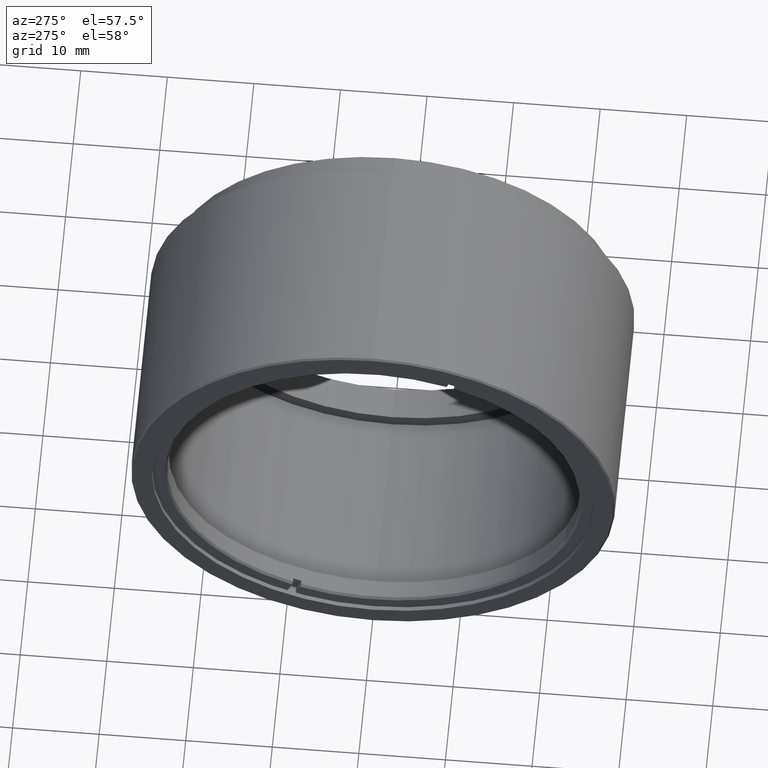
[diagram: clean part render]
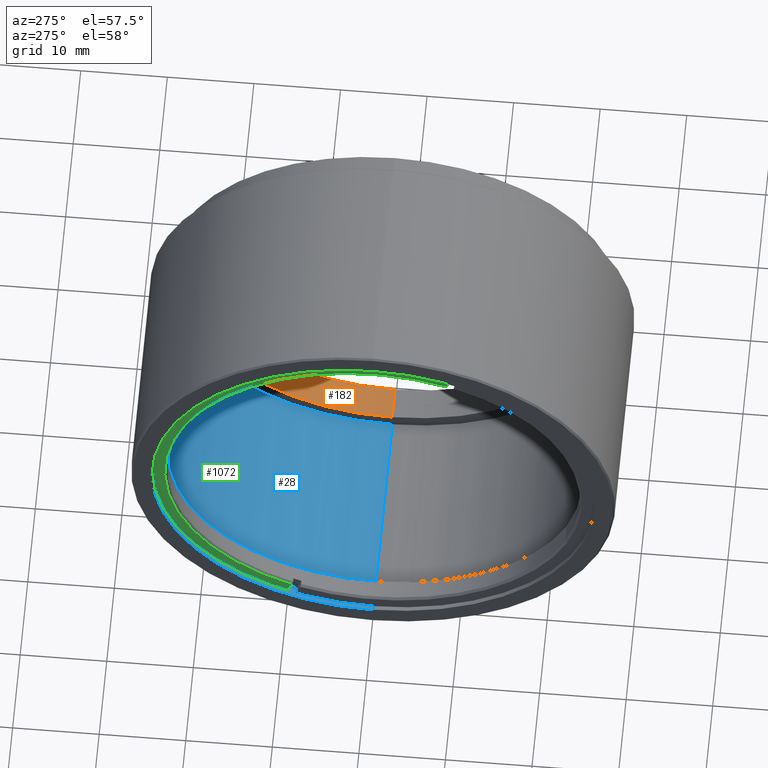
[diagram: same view with three faces highlighted in distinct colors, each labeled with its STEP entity id]
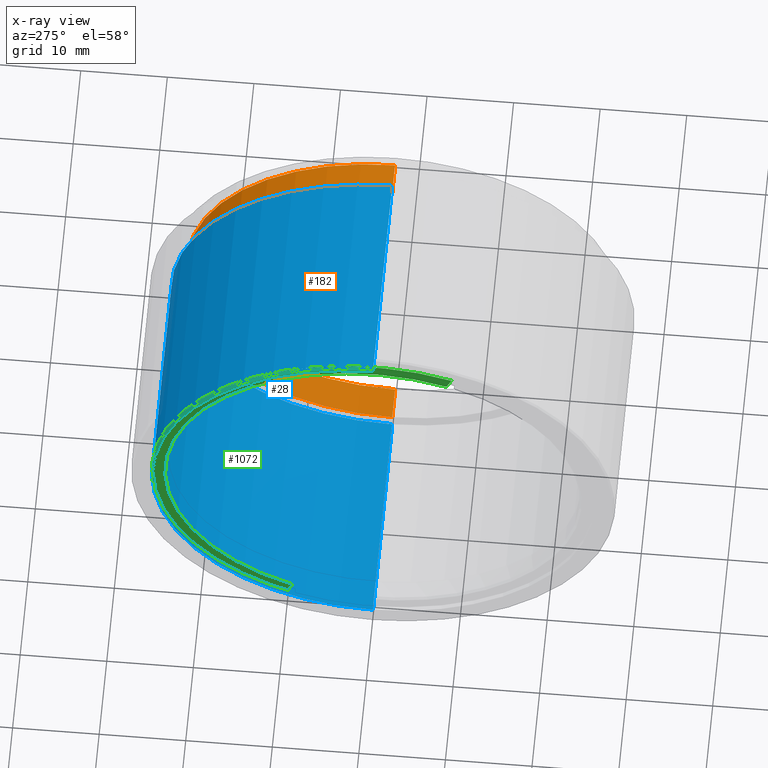
[diagram: x-ray of the same camera — body ghosted, the three highlighted faces saturated]
A machine part, auxiliary view with three faces highlighted in distinct colors.
The next image is the same camera in x-ray (body ghosted, the three faces saturated) — at least one of them is partly hidden behind the body in this view.
Their STEP definitions:

[orange] entity #182 — the highlighted cylindrical surface (partial cylindrical patch) has radius 24 mm, axis along (1, -0, -0).
#48 = CARTESIAN_POINT ( 'NONE',  ( 2.725999999999982659, -20.10857142857141966, 0.000000000000000000 ) ) ;
#56 = DIRECTION ( 'NONE',  ( 0.000000000000000000, 0.000000000000000000, -1.000000000000000000 ) ) ;
#182 = ADVANCED_FACE ( 'NONE', ( #717 ), #1102, .F. ) ;
#249 = CARTESIAN_POINT ( 'NONE',  ( -22.67400000000001725, -20.10857142857141611, 24.00000000000000355 ) ) ;
#368 = CIRCLE ( 'NONE', #827, 24.00000000000000355 ) ;
#389 = CIRCLE ( 'NONE', #539, 24.00000000000000355 ) ;
#439 = VERTEX_POINT ( 'NONE', #1187 ) ;
#482 = CARTESIAN_POINT ( 'NONE',  ( -22.67400000000001725, -20.10857142857141966, 0.000000000000000000 ) ) ;
#539 = AXIS2_PLACEMENT_3D ( 'NONE', #1308, #1565, #784 ) ;
#654 = DIRECTION ( 'NONE',  ( 1.000000000000000000, -0.000000000000000000, -0.000000000000000000 ) ) ;
#717 = FACE_OUTER_BOUND ( 'NONE', #799, .T. ) ;
#724 = VECTOR ( 'NONE', #821, 1000.000000000000000 ) ;
#781 = CARTESIAN_POINT ( 'NONE',  ( 6.525999999999982926, -20.10857142857141611, 24.00000000000000355 ) ) ;
#784 = DIRECTION ( 'NONE',  ( 0.000000000000000000, 0.000000000000000000, -1.000000000000000000 ) ) ;
#799 = EDGE_LOOP ( 'NONE', ( #1007, #1202, #1153, #1045 ) ) ;
#821 = DIRECTION ( 'NONE',  ( 1.000000000000000000, -0.000000000000000000, -0.000000000000000000 ) ) ;
#824 = DIRECTION ( 'NONE',  ( 1.000000000000000000, 0.000000000000000000, 0.000000000000000000 ) ) ;
#827 = AXIS2_PLACEMENT_3D ( 'NONE', #48, #824, #56 ) ;
#847 = DIRECTION ( 'NONE',  ( 0.000000000000000000, 0.000000000000000000, -1.000000000000000000 ) ) ;
#916 = CARTESIAN_POINT ( 'NONE',  ( 2.725999999999982659, -20.10857142857141966, -24.00000000000000355 ) ) ;
#976 = LINE ( 'NONE', #249, #1094 ) ;
#988 = VERTEX_POINT ( 'NONE', #781 ) ;
#992 = DIRECTION ( 'NONE',  ( 1.000000000000000000, -0.000000000000000000, -0.000000000000000000 ) ) ;
#1007 = ORIENTED_EDGE ( 'NONE', *, *, #1368, .F. ) ;
#1008 = VERTEX_POINT ( 'NONE', #916 ) ;
#1045 = ORIENTED_EDGE ( 'NONE', *, *, #1413, .T. ) ;
#1069 = AXIS2_PLACEMENT_3D ( 'NONE', #482, #992, #847 ) ;
#1094 = VECTOR ( 'NONE', #654, 1000.000000000000000 ) ;
#1102 = CYLINDRICAL_SURFACE ( 'NONE', #1069, 24.00000000000000355 ) ;
#1112 = LINE ( 'NONE', #1334, #724 ) ;
#1153 = ORIENTED_EDGE ( 'NONE', *, *, #1454, .T. ) ;
#1168 = EDGE_CURVE ( 'NONE', #1008, #439, #368, .T. ) ;
#1187 = CARTESIAN_POINT ( 'NONE',  ( 2.725999999999982659, -20.10857142857141611, 24.00000000000000355 ) ) ;
#1202 = ORIENTED_EDGE ( 'NONE', *, *, #1168, .F. ) ;
#1308 = CARTESIAN_POINT ( 'NONE',  ( 6.525999999999982926, -20.10857142857141966, 0.000000000000000000 ) ) ;
#1334 = CARTESIAN_POINT ( 'NONE',  ( -22.67400000000001725, -20.10857142857141966, -24.00000000000000355 ) ) ;
#1368 = EDGE_CURVE ( 'NONE', #439, #988, #976, .T. ) ;
#1413 = EDGE_CURVE ( 'NONE', #1475, #988, #389, .T. ) ;
#1450 = CARTESIAN_POINT ( 'NONE',  ( 6.525999999999982926, -20.10857142857141966, -24.00000000000000355 ) ) ;
#1454 = EDGE_CURVE ( 'NONE', #1008, #1475, #1112, .T. ) ;
#1475 = VERTEX_POINT ( 'NONE', #1450 ) ;
#1565 = DIRECTION ( 'NONE',  ( 1.000000000000000000, 0.000000000000000000, 0.000000000000000000 ) ) ;

[blue] entity #28 — the highlighted cylindrical surface (partial cylindrical patch) has radius 25.525 mm, axis along (1, -0, -0).
#27 = AXIS2_PLACEMENT_3D ( 'NONE', #1414, #787, #47 ) ;
#28 = ADVANCED_FACE ( 'NONE', ( #608 ), #771, .F. ) ;
#47 = DIRECTION ( 'NONE',  ( 0.000000000000000000, 0.000000000000000000, -1.000000000000000000 ) ) ;
#77 = VERTEX_POINT ( 'NONE', #205 ) ;
#130 = LINE ( 'NONE', #1037, #603 ) ;
#151 = CIRCLE ( 'NONE', #1458, 25.52499999999999858 ) ;
#178 = CARTESIAN_POINT ( 'NONE',  ( -22.67400000000001725, -20.10857142857141966, 0.000000000000000000 ) ) ;
#205 = CARTESIAN_POINT ( 'NONE',  ( -22.67400000000001725, -20.10857142857141966, -25.52499999999999858 ) ) ;
#269 = CARTESIAN_POINT ( 'NONE',  ( -22.67400000000001725, -20.10857142857141611, 25.52499999999999858 ) ) ;
#272 = DIRECTION ( 'NONE',  ( 1.000000000000000000, -0.000000000000000000, -0.000000000000000000 ) ) ;
#348 = CARTESIAN_POINT ( 'NONE',  ( -22.67400000000001725, -20.10857142857141611, 25.52499999999999858 ) ) ;
#361 = ORIENTED_EDGE ( 'NONE', *, *, #937, .T. ) ;
#362 = VERTEX_POINT ( 'NONE', #387 ) ;
#384 = ORIENTED_EDGE ( 'NONE', *, *, #1176, .F. ) ;
#387 = CARTESIAN_POINT ( 'NONE',  ( 2.725999999999982659, -20.10857142857141966, -25.52499999999999858 ) ) ;
#392 = EDGE_CURVE ( 'NONE', #1598, #1150, #1591, .T. ) ;
#423 = DIRECTION ( 'NONE',  ( 0.000000000000000000, 0.000000000000000000, 1.000000000000000000 ) ) ;
#492 = VECTOR ( 'NONE', #1046, 1000.000000000000000 ) ;
#556 = EDGE_CURVE ( 'NONE', #1598, #77, #1451, .T. ) ;
#603 = VECTOR ( 'NONE', #272, 1000.000000000000000 ) ;
#608 = FACE_OUTER_BOUND ( 'NONE', #1557, .T. ) ;
#618 = AXIS2_PLACEMENT_3D ( 'NONE', #178, #801, #423 ) ;
#771 = CYLINDRICAL_SURFACE ( 'NONE', #27, 25.52499999999999858 ) ;
#787 = DIRECTION ( 'NONE',  ( 1.000000000000000000, -0.000000000000000000, -0.000000000000000000 ) ) ;
#796 = ORIENTED_EDGE ( 'NONE', *, *, #392, .F. ) ;
#801 = DIRECTION ( 'NONE',  ( -1.000000000000000000, 0.000000000000000000, 0.000000000000000000 ) ) ;
#937 = EDGE_CURVE ( 'NONE', #77, #362, #130, .T. ) ;
#962 = DIRECTION ( 'NONE',  ( 0.000000000000000000, 0.000000000000000000, 1.000000000000000000 ) ) ;
#1037 = CARTESIAN_POINT ( 'NONE',  ( -22.67400000000001725, -20.10857142857141966, -25.52499999999999858 ) ) ;
#1046 = DIRECTION ( 'NONE',  ( 1.000000000000000000, -0.000000000000000000, -0.000000000000000000 ) ) ;
#1071 = DIRECTION ( 'NONE',  ( -1.000000000000000000, 0.000000000000000000, 0.000000000000000000 ) ) ;
#1150 = VERTEX_POINT ( 'NONE', #1338 ) ;
#1176 = EDGE_CURVE ( 'NONE', #1150, #362, #151, .T. ) ;
#1264 = ORIENTED_EDGE ( 'NONE', *, *, #556, .T. ) ;
#1338 = CARTESIAN_POINT ( 'NONE',  ( 2.725999999999982659, -20.10857142857141611, 25.52499999999999858 ) ) ;
#1414 = CARTESIAN_POINT ( 'NONE',  ( -22.67400000000001725, -20.10857142857141966, 0.000000000000000000 ) ) ;
#1451 = CIRCLE ( 'NONE', #618, 25.52499999999999858 ) ;
#1458 = AXIS2_PLACEMENT_3D ( 'NONE', #1586, #1071, #962 ) ;
#1557 = EDGE_LOOP ( 'NONE', ( #796, #1264, #361, #384 ) ) ;
#1586 = CARTESIAN_POINT ( 'NONE',  ( 2.725999999999982659, -20.10857142857141966, 0.000000000000000000 ) ) ;
#1591 = LINE ( 'NONE', #269, #492 ) ;
#1598 = VERTEX_POINT ( 'NONE', #348 ) ;

[green] entity #1072 — the highlighted planar face has unit normal (-1, -0, 0).
#172 = CARTESIAN_POINT ( 'NONE',  ( -22.17400000000001015, -58.53752425791621761, 97.71625036011145937 ) ) ;
#252 = EDGE_CURVE ( 'NONE', #1460, #343, #1163, .T. ) ;
#327 = DIRECTION ( 'NONE',  ( 0.000000000000000000, -0.9288670834128058829, -0.3704132035338204010 ) ) ;
#343 = VERTEX_POINT ( 'NONE', #1032 ) ;
#364 = VERTEX_POINT ( 'NONE', #777 ) ;
#430 = PLANE ( 'NONE',  #1627 ) ;
#497 = ORIENTED_EDGE ( 'NONE', *, *, #993, .F. ) ;
#505 = DIRECTION ( 'NONE',  ( 0.000000000000000000, -0.9288670834128059939, -0.3704132035338203455 ) ) ;
#531 = DIRECTION ( 'NONE',  ( 0.000000000000000000, 0.3704132035338202900, -0.9288670834128058829 ) ) ;
#552 = CARTESIAN_POINT ( 'NONE',  ( -22.17400000000001015, -29.12286940519742018, 23.95455827684151728 ) ) ;
#619 = CARTESIAN_POINT ( 'NONE',  ( -22.17400000000001015, -20.10857142857141966, 0.000000000000000000 ) ) ;
#657 = ORIENTED_EDGE ( 'NONE', *, *, #252, .T. ) ;
#664 = LINE ( 'NONE', #172, #1328 ) ;
#668 = CARTESIAN_POINT ( 'NONE',  ( -22.17400000000001015, -58.53752425791621761, 97.71625036011145937 ) ) ;
#670 = CARTESIAN_POINT ( 'NONE',  ( -22.17400000000001015, -28.56713694362024469, 22.56097514908490353 ) ) ;
#736 = CARTESIAN_POINT ( 'NONE',  ( -22.17400000000001015, -20.10857142857141966, 0.000000000000000000 ) ) ;
#777 = CARTESIAN_POINT ( 'NONE',  ( -22.17400000000001015, -10.72113883010987578, -22.19056194555112782 ) ) ;
#789 = CIRCLE ( 'NONE', #865, 24.09450000000000713 ) ;
#865 = AXIS2_PLACEMENT_3D ( 'NONE', #619, #1517, #505 ) ;
#866 = EDGE_CURVE ( 'NONE', #364, #1363, #789, .T. ) ;
#908 = VECTOR ( 'NONE', #1313, 1000.000000000000114 ) ;
#993 = EDGE_CURVE ( 'NONE', #364, #343, #1015, .T. ) ;
#1015 = LINE ( 'NONE', #668, #908 ) ;
#1032 = CARTESIAN_POINT ( 'NONE',  ( -22.17400000000001015, -10.16540636853270385, -23.58414507330773802 ) ) ;
#1072 = ADVANCED_FACE ( 'NONE', ( #1330 ), #430, .T. ) ;
#1076 = DIRECTION ( 'NONE',  ( -1.000000000000000000, -0.000000000000000000, 0.000000000000000000 ) ) ;
#1163 = CIRCLE ( 'NONE', #1208, 25.59450000000000713 ) ;
#1208 = AXIS2_PLACEMENT_3D ( 'NONE', #736, #1515, #1397 ) ;
#1313 = DIRECTION ( 'NONE',  ( 0.000000000000000000, 0.3704132035338202900, -0.9288670834128058829 ) ) ;
#1325 = CARTESIAN_POINT ( 'NONE',  ( -22.17400000000001015, -20.10857142857141966, 0.000000000000000000 ) ) ;
#1328 = VECTOR ( 'NONE', #531, 1000.000000000000114 ) ;
#1330 = FACE_OUTER_BOUND ( 'NONE', #1519, .T. ) ;
#1363 = VERTEX_POINT ( 'NONE', #670 ) ;
#1397 = DIRECTION ( 'NONE',  ( 0.000000000000000000, -0.9288670834128058829, -0.3704132035338204010 ) ) ;
#1436 = ORIENTED_EDGE ( 'NONE', *, *, #866, .T. ) ;
#1456 = ORIENTED_EDGE ( 'NONE', *, *, #1469, .F. ) ;
#1460 = VERTEX_POINT ( 'NONE', #552 ) ;
#1469 = EDGE_CURVE ( 'NONE', #1460, #1363, #664, .T. ) ;
#1515 = DIRECTION ( 'NONE',  ( -1.000000000000000000, 0.000000000000000000, 0.000000000000000000 ) ) ;
#1517 = DIRECTION ( 'NONE',  ( 1.000000000000000000, -0.000000000000000000, -0.000000000000000000 ) ) ;
#1519 = EDGE_LOOP ( 'NONE', ( #1456, #657, #497, #1436 ) ) ;
#1627 = AXIS2_PLACEMENT_3D ( 'NONE', #1325, #1076, #327 ) ;